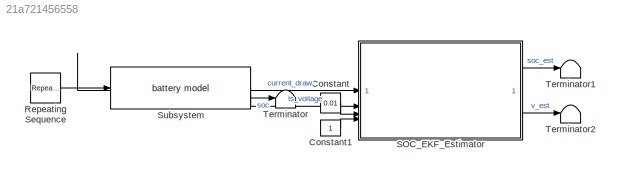
MODEL slx_21a721456558
KIND model
CONFIG AbsTol = auto
CONFIG EnableMultiTasking = off
CONFIG FixedStep = auto
CONFIG MaxStep = auto
CONFIG MinStep = auto
CONFIG RelTol = 1e-3
CONFIG SampleTimeConstraint = Unconstrained
CONFIG SolverName = VariableStepAuto
CONFIG StartTime = 0.0
CONFIG StopTime = 500.0
BLOCK [Constant] Constant
  Value = 0.01
BLOCK [Constant] Constant1
BLOCK [Reference] Repeating Sequence  REF=simulink/Sources/Repeating
Sequence
  SourceBlock = simulink/Sources/Repeating\nSequence
  SourceType = Repeating table
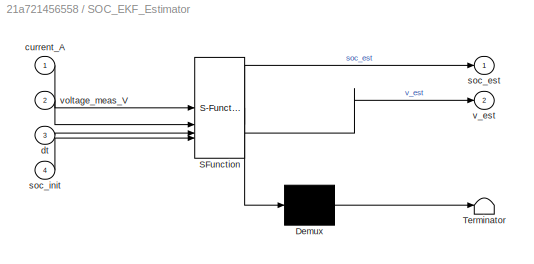
BLOCK [SubSystem] SOC_EKF_Estimator
  ErrorFcn = Stateflow.Translate.translate
  PermitHierarchicalResolution = ExplicitOnly
  SFBlockType = MATLAB Function
  SystemSampleTime = 0.01
  TreatAsAtomicUnit = on
BLOCK [Demux] SOC_EKF_Estimator/ Demux 
  Outputs = 1
BLOCK [S-Function] SOC_EKF_Estimator/ SFunction 
  EnableBusSupport = off
  FunctionName = sf_sfun
  PortCounts = [4 3]
  SFcnIsStateOwnerBlock = off
  SFunctionDeploymentMode = off
  Tag = Stateflow S-Function 2
BLOCK [Terminator] SOC_EKF_Estimator/ Terminator 
BLOCK [Inport] SOC_EKF_Estimator/current_A
BLOCK [Inport] SOC_EKF_Estimator/dt
  Port = 3
BLOCK [Outport] SOC_EKF_Estimator/soc_est
BLOCK [Inport] SOC_EKF_Estimator/soc_init
  Port = 4
BLOCK [Outport] SOC_EKF_Estimator/v_est
  Port = 2
BLOCK [Inport] SOC_EKF_Estimator/voltage_meas_V
  Port = 2
BLOCK [Reference] Subsystem  REF=battery/battery model  (lib defined in slx_088eb5da3e32, slx_0fbecc2a093a, +8 more)
  SourceBlock = battery/battery model
  SourceType = SubSystem
BLOCK [Terminator] Terminator
BLOCK [Terminator] Terminator1
BLOCK [Terminator] Terminator2
LINE Constant1:1 -> SOC_EKF_Estimator:4
LINE Constant:1 -> SOC_EKF_Estimator:3
NET Repeating Sequence:1 -> SOC_EKF_Estimator:1, Subsystem:1
LINE SOC_EKF_Estimator:1 -> Terminator1:1
LINE SOC_EKF_Estimator:2 -> Terminator2:1
LINE Subsystem:1 -> SOC_EKF_Estimator:2
LINE Subsystem:2 -> Terminator:1
note: NET lines group one-source signal fan-out (src -> all destinations, sorted); 1:1 wires keep LINE
CHART SOC_EKF_Estimator states=1 transitions=1
  STATE_LABEL 'eML_blk_kernel()'
  STATE_LABEL 'SCRIPT:\nfunction [soc_est, v_est] = SOC_EKF_Estimator(current_A, voltage_meas_V, dt, soc_init)\n    % EXTENDED KALMAN FILTER (EKF) for Battery SOC\n    % Inputs:\n    %   current_A      : Current in Amps (+ = Discharge, - = Charge)\n    %   voltage_meas_V : Measured Pack Terminal Voltage (Volts)\n    %   dt             : Time step in seconds (0.01)\n    %   soc_init       : Initial SOC (0-1)\n    \n    % ...<+3459ch>'
CHART  states=0 transitions=0
